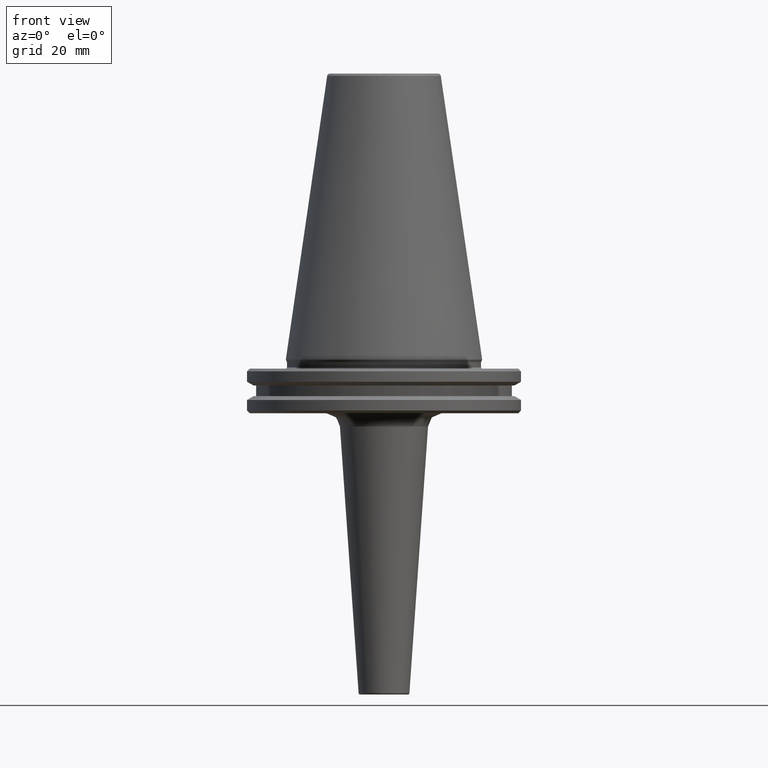
[diagram: clean part render]
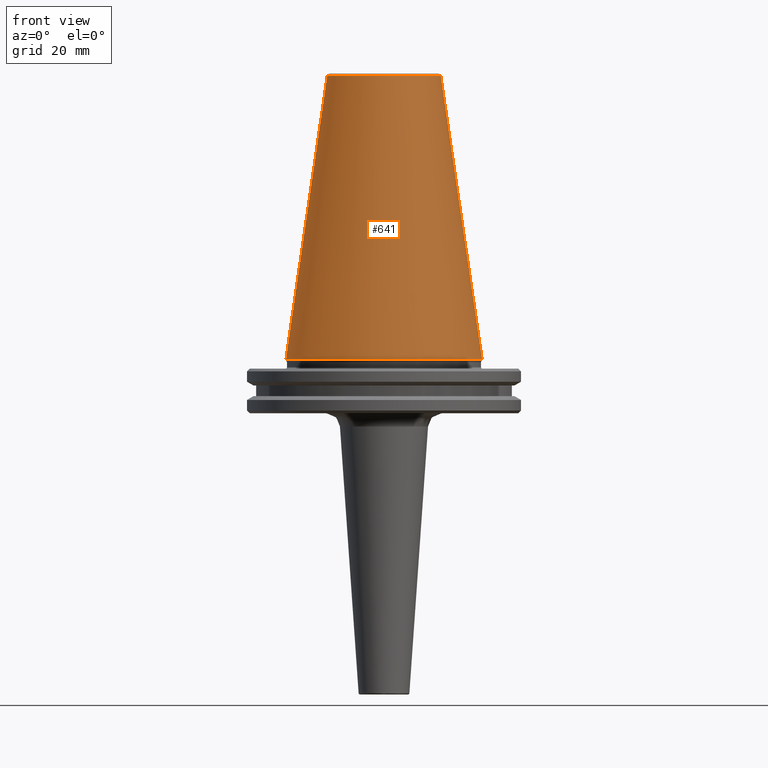
[diagram: same view with one face highlighted and labeled with its STEP entity id]
A machine part, front view. The second image highlights one B-rep face of the part: STEP entity #641.
In plain terms, the highlighted conical surface has half-angle 8.297 deg.
Its self-contained STEP definition (entity closure, byte-faithful):
#52 = EDGE_CURVE ( 'NONE', #350, #1148, #1305, .T. ) ;
#87 = DIRECTION ( 'NONE',  ( -0.0000000000000000000, -0.0000000000000000000, 1.000000000000000000 ) ) ;
#96 = CARTESIAN_POINT ( 'NONE',  ( 0.0000000000000000000, 0.0000000000000000000, 0.0000000000000000000 ) ) ;
#305 = DIRECTION ( 'NONE',  ( 0.0000000000000000000, 0.0000000000000000000, -1.000000000000000000 ) ) ;
#310 = CARTESIAN_POINT ( 'NONE',  ( 0.0000000000000000000, 0.0000000000000000000, -1.387778780781445700E-014 ) ) ;
#311 = DIRECTION ( 'NONE',  ( -1.000000000000000000, 0.0000000000000000000, 0.0000000000000000000 ) ) ;
#346 = EDGE_LOOP ( 'NONE', ( #760, #814, #996, #863 ) ) ;
#350 = VERTEX_POINT ( 'NONE', #1285 ) ;
#407 = VECTOR ( 'NONE', #607, 1000.000000000000000 ) ;
#419 = VERTEX_POINT ( 'NONE', #640 ) ;
#458 = VERTEX_POINT ( 'NONE', #632 ) ;
#503 = CONICAL_SURFACE ( 'NONE', #775, 34.92499999999999700, 0.1448138465474189400 ) ;
#510 = CARTESIAN_POINT ( 'NONE',  ( 0.0000000000000000000, 0.0000000000000000000, 100.8943082272673000 ) ) ;
#514 = DIRECTION ( 'NONE',  ( -1.000000000000000000, 0.0000000000000000000, 0.0000000000000000000 ) ) ;
#538 = AXIS2_PLACEMENT_3D ( 'NONE', #96, #87, #742 ) ;
#558 = DIRECTION ( 'NONE',  ( 0.0000000000000000000, 0.0000000000000000000, -1.000000000000000000 ) ) ;
#607 = DIRECTION ( 'NONE',  ( -0.1443082272673069400, 0.0000000000000000000, -0.9895327864921743500 ) ) ;
#613 = CARTESIAN_POINT ( 'NONE',  ( -34.92499999999999700, 0.0000000000000000000, -1.387778780781445700E-014 ) ) ;
#632 = CARTESIAN_POINT ( 'NONE',  ( 34.92500000000000400, 0.0000000000000000000, 0.0000000000000000000 ) ) ;
#635 = FACE_OUTER_BOUND ( 'NONE', #346, .T. ) ;
#640 = CARTESIAN_POINT ( 'NONE',  ( -34.92500000000000400, 4.277078946022131700E-015, 0.0000000000000000000 ) ) ;
#641 = ADVANCED_FACE ( 'NONE', ( #635 ), #503, .T. ) ;
#673 = LINE ( 'NONE', #938, #910 ) ;
#742 = DIRECTION ( 'NONE',  ( -1.000000000000000000, 0.0000000000000000000, 0.0000000000000000000 ) ) ;
#760 = ORIENTED_EDGE ( 'NONE', *, *, #916, .F. ) ;
#775 = AXIS2_PLACEMENT_3D ( 'NONE', #310, #305, #311 ) ;
#814 = ORIENTED_EDGE ( 'NONE', *, *, #52, .T. ) ;
#833 = CARTESIAN_POINT ( 'NONE',  ( -20.21110778703758000, 0.0000000000000000000, 100.8943082272673000 ) ) ;
#853 = CIRCLE ( 'NONE', #538, 34.92499999999999700 ) ;
#863 = ORIENTED_EDGE ( 'NONE', *, *, #1159, .T. ) ;
#892 = DIRECTION ( 'NONE',  ( 0.1443082272673069400, 1.767266086135362400E-017, -0.9895327864921743500 ) ) ;
#910 = VECTOR ( 'NONE', #892, 1000.000000000000000 ) ;
#916 = EDGE_CURVE ( 'NONE', #350, #458, #673, .T. ) ;
#938 = CARTESIAN_POINT ( 'NONE',  ( 34.92499999999999700, 4.277078946022130900E-015, -1.387778780781445700E-014 ) ) ;
#947 = AXIS2_PLACEMENT_3D ( 'NONE', #510, #558, #514 ) ;
#994 = EDGE_CURVE ( 'NONE', #1148, #419, #1497, .T. ) ;
#996 = ORIENTED_EDGE ( 'NONE', *, *, #994, .T. ) ;
#1148 = VERTEX_POINT ( 'NONE', #833 ) ;
#1159 = EDGE_CURVE ( 'NONE', #419, #458, #853, .T. ) ;
#1285 = CARTESIAN_POINT ( 'NONE',  ( 20.21110778703758000, 3.376112895941951000E-015, 100.8943082272673000 ) ) ;
#1305 = CIRCLE ( 'NONE', #947, 20.21110778703758000 ) ;
#1497 = LINE ( 'NONE', #613, #407 ) ;